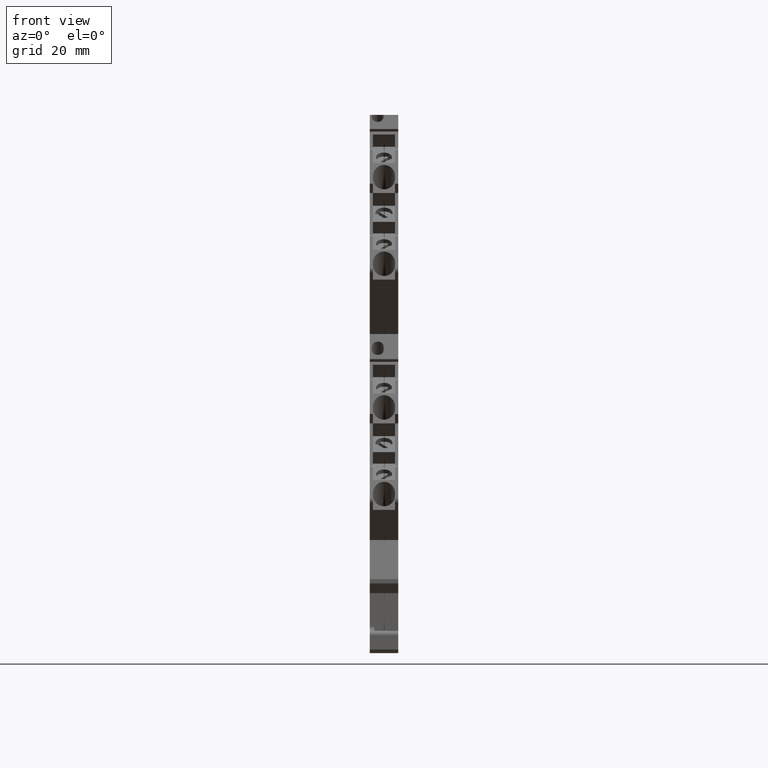
[diagram: clean part render]
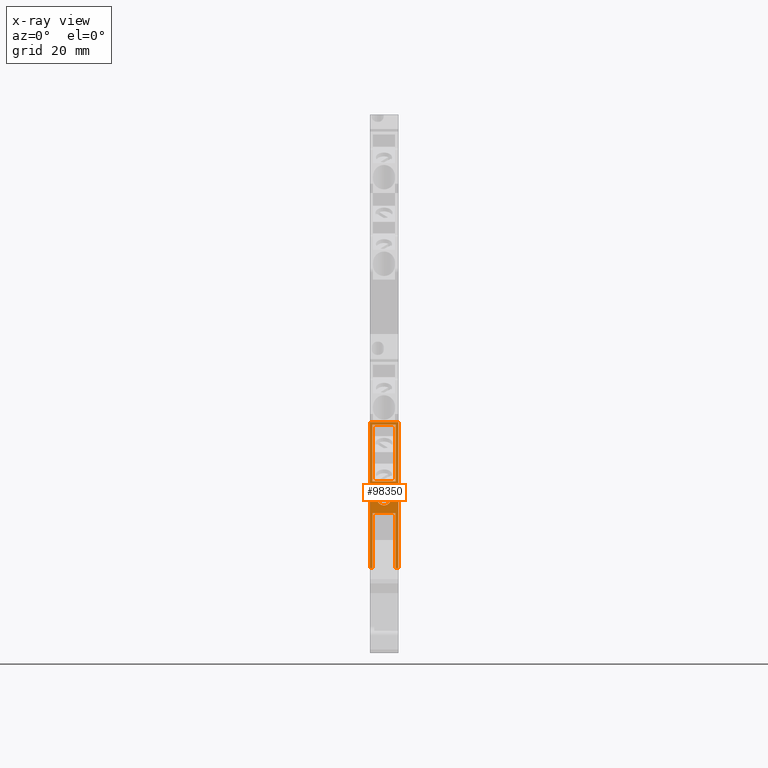
[diagram: x-ray — body ghosted, one internal face saturated and labeled with its STEP entity id]
A machine part, front view, then the same camera in x-ray: the body is ghosted and one INTERNAL B-rep face — a face not visible from any outside direction — is saturated and labeled: STEP entity #98350.
In plain terms, the highlighted planar face has unit normal (0, 0.9171, -0.3987).
Its self-contained STEP definition (entity closure, byte-faithful):
#61720=CARTESIAN_POINT('',(-12.5490777099876,42.1612984679579,
-14.6999999997823));
#61730=VERTEX_POINT('',#61720);
#61760=CARTESIAN_POINT('',(-30.881332028242,1.77282783227625E-15,
-14.6999999999449));
#61770=DIRECTION('',(0.398749068924602,0.917060074385404,
3.53810057950121E-12));
#61780=VECTOR('',#61770,1.);
#61790=LINE('',#61760,#61780);
#61800=CARTESIAN_POINT('',(-26.5964900346587,9.85446192504636,
-14.6999999999069));
#61810=VERTEX_POINT('',#61800);
#61820=EDGE_CURVE('',#61810,#61730,#61790,.T.);
#67390=CARTESIAN_POINT('',(-26.596490034467,9.85446192561595,
-8.40000000017988));
#67400=VERTEX_POINT('',#67390);
#67430=CARTESIAN_POINT('',(-37.6816886008946,-15.6397493820656,
-8.40000000027814));
#67440=DIRECTION('',(-0.398749068924602,-0.917060074385404,
-3.53454009971152E-12));
#67450=VECTOR('',#67440,1.);
#67460=LINE('',#67430,#67450);
#67470=CARTESIAN_POINT('',(-12.5490777100436,42.161298467958,
-8.40000000005536));
#67480=VERTEX_POINT('',#67470);
#67490=EDGE_CURVE('',#67480,#67400,#67460,.T.);
#97270=CARTESIAN_POINT('',(-12.5490777101182,42.161298467958,
2.22465948440664E-10));
#97280=DIRECTION('',(8.87912561076062E-12,-6.5458857184369E-15,-1.));
#97290=VECTOR('',#97280,1.);
#97300=LINE('',#97270,#97290);
#97310=EDGE_CURVE('',#67480,#61730,#97300,.T.);
#97380=CARTESIAN_POINT('',(-26.5964900348023,9.8544619248447,
-8.40000000017988));
#97390=DIRECTION('',(0.917060074385404,-0.398749068924602,
8.145301758917E-12));
#97400=DIRECTION('',(-0.398749068924602,-0.917060074385404,
-3.53454009971152E-12));
#97410=AXIS2_PLACEMENT_3D('',#97380,#97390,#97400);
#97420=PLANE('',#97410);
#97430=CARTESIAN_POINT('',(-30.8813320282471,-1.97179138180552E-13,
-14.1250000060487));
#97440=DIRECTION('',(-0.398749068924602,-0.917060074385404,
-3.90263884550301E-11));
#97450=VECTOR('',#97440,1.);
#97460=LINE('',#97430,#97450);
#97470=CARTESIAN_POINT('',(-12.7899648562731,41.6072959598589,
-14.1250000042781));
#97480=VERTEX_POINT('',#97470);
#97490=CARTESIAN_POINT('',(-18.2558750420608,29.0365631551883,
-14.125000004813));
#97500=VERTEX_POINT('',#97490);
#97510=EDGE_CURVE('',#97480,#97500,#97460,.T.);
#97520=ORIENTED_EDGE('',*,*,#97510,.F.);
#97530=CARTESIAN_POINT('',(-18.2558750416397,29.0365631564474,
0.100000000172113));
#97540=DIRECTION('',(2.96025200575455E-11,8.85082718815287E-11,1.));
#97550=VECTOR('',#97540,1.);
#97560=LINE('',#97530,#97550);
#97570=CARTESIAN_POINT('',(-18.2558750419083,29.0365631556441,
-8.97500000481558));
#97580=VERTEX_POINT('',#97570);
#97590=EDGE_CURVE('',#97500,#97580,#97560,.T.);
#97600=ORIENTED_EDGE('',*,*,#97590,.F.);
#97610=CARTESIAN_POINT('',(-30.8813320282929,-1.97179138180555E-13,
-8.97500000605126));
#97620=DIRECTION('',(-0.398749068924602,-0.917060074385404,
-3.90263884550301E-11));
#97630=VECTOR('',#97620,1.);
#97640=LINE('',#97610,#97630);
#97650=CARTESIAN_POINT('',(-12.789964856387,41.6072959597023,
-8.97500000428062));
#97660=VERTEX_POINT('',#97650);
#97670=EDGE_CURVE('',#97660,#97580,#97640,.T.);
#97680=ORIENTED_EDGE('',*,*,#97670,.T.);
#97690=CARTESIAN_POINT('',(-12.7899648565875,41.6072959594264,
0.10000000022017));
#97700=DIRECTION('',(2.21016705887573E-11,3.0403225637482E-11,-1.));
#97710=VECTOR('',#97700,1.);
#97720=LINE('',#97690,#97710);
#97730=EDGE_CURVE('',#97660,#97480,#97720,.T.);
#97740=ORIENTED_EDGE('',*,*,#97730,.F.);
#97750=EDGE_LOOP('',(#97740,#97680,#97600,#97520));
#97760=FACE_BOUND('',#97750,.T.);
#97770=CARTESIAN_POINT('',(-19.8159448089924,25.4486483285877,
-11.5500000048346));
#97780=DIRECTION('',(0.917060074385404,-0.398749068924602,
8.145301758917E-12));
#97790=DIRECTION('',(-0.398749068924602,-0.917060074385404,
4.43459855581995E-11));
#97800=AXIS2_PLACEMENT_3D('',#97770,#97780,#97790);
#97810=ELLIPSE('',#97800,1.89577664478849,1.65);
#97820=CARTESIAN_POINT('',(-20.4156716761256,24.0693709628108,
-12.5544563627432));
#97830=VERTEX_POINT('',#97820);
#97840=CARTESIAN_POINT('',(-19.2162179418592,26.8279256943646,
-10.5455436469261));
#97850=VERTEX_POINT('',#97840);
#97860=EDGE_CURVE('',#97830,#97850,#97810,.T.);
#97870=ORIENTED_EDGE('',*,*,#97860,.T.);
#97880=CARTESIAN_POINT('',(-20.5718839809908,23.7101072576998,
-11.5500000047506));
#97890=VERTEX_POINT('',#97880);
#97900=EDGE_CURVE('',#97890,#97830,#97810,.T.);
#97910=ORIENTED_EDGE('',*,*,#97900,.T.);
#97920=EDGE_CURVE('',#97850,#97890,#97810,.T.);
#97930=ORIENTED_EDGE('',*,*,#97920,.T.);
#97940=EDGE_LOOP('',(#97930,#97910,#97870));
#97950=FACE_BOUND('',#97940,.T.);
#97960=ORIENTED_EDGE('',*,*,#67490,.F.);
#97970=CARTESIAN_POINT('',(-26.5964900342083,9.85446192638443,
0.100000000098781));
#97980=DIRECTION('',(3.04294647802797E-11,9.0410114539089E-11,1.));
#97990=VECTOR('',#97980,1.);
#98000=LINE('',#97970,#97990);
#98010=CARTESIAN_POINT('',(-26.5964900344863,9.85446192555854,
-9.03500000485584));
#98020=VERTEX_POINT('',#98010);
#98030=EDGE_CURVE('',#98020,#67400,#98000,.T.);
#98040=ORIENTED_EDGE('',*,*,#98030,.T.);
#98050=CARTESIAN_POINT('',(-30.8813320282924,-1.97179138180555E-13,
-9.03500000499325));
#98060=DIRECTION('',(-0.398749068924602,-0.917060074385404,
-1.27867946239512E-11));
#98070=VECTOR('',#98060,1.);
#98080=LINE('',#98050,#98070);
#98090=CARTESIAN_POINT('',(-21.3049159307278,22.0242491912593,
-9.03500000468616));
#98100=VERTEX_POINT('',#98090);
#98110=EDGE_CURVE('',#98100,#98020,#98080,.T.);
#98120=ORIENTED_EDGE('',*,*,#98110,.T.);
#98130=CARTESIAN_POINT('',(-21.3049159309551,22.0242491909232,
0.100000000145305));
#98140=DIRECTION('',(-2.48818430454671E-11,-3.67971845420897E-11,1.));
#98150=VECTOR('',#98140,1.);
#98160=LINE('',#98130,#98150);
#98170=CARTESIAN_POINT('',(-21.3049159306026,22.0242491914444,
-14.0650000047358));
#98180=VERTEX_POINT('',#98170);
#98190=EDGE_CURVE('',#98180,#98100,#98160,.T.);
#98200=ORIENTED_EDGE('',*,*,#98190,.T.);
#98210=CARTESIAN_POINT('',(-30.8813320282477,-1.97179138180552E-13,
-14.0650000050717));
#98220=DIRECTION('',(0.398749068924602,0.917060074385404,
1.39836428000728E-11));
#98230=VECTOR('',#98220,1.);
#98240=LINE('',#98210,#98230);
#98250=CARTESIAN_POINT('',(-26.5964900346394,9.85446192510377,
-14.0650000049214));
#98260=VERTEX_POINT('',#98250);
#98270=EDGE_CURVE('',#98260,#98180,#98240,.T.);
#98280=ORIENTED_EDGE('',*,*,#98270,.T.);
#98290=EDGE_CURVE('',#61810,#98260,#98000,.T.);
#98300=ORIENTED_EDGE('',*,*,#98290,.T.);
#98310=ORIENTED_EDGE('',*,*,#61820,.F.);
#98320=ORIENTED_EDGE('',*,*,#97310,.T.);
#98330=EDGE_LOOP('',(#98320,#98310,#98300,#98280,#98200,#98120,#98040,
#97960));
#98340=FACE_OUTER_BOUND('',#98330,.T.);
#98350=ADVANCED_FACE('',(#97760,#97950,#98340),#97420,.F.);